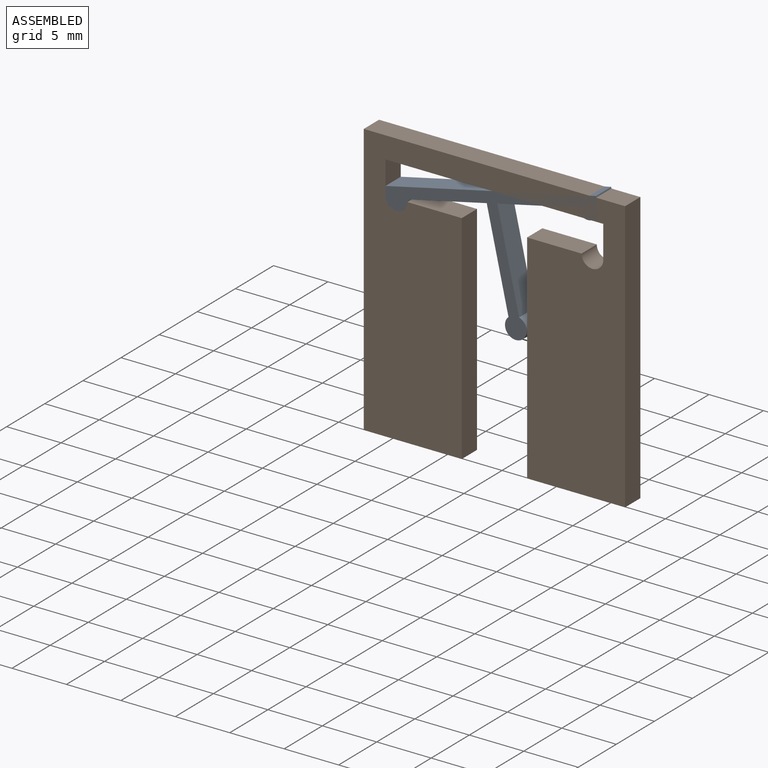
[diagram: assembled view]
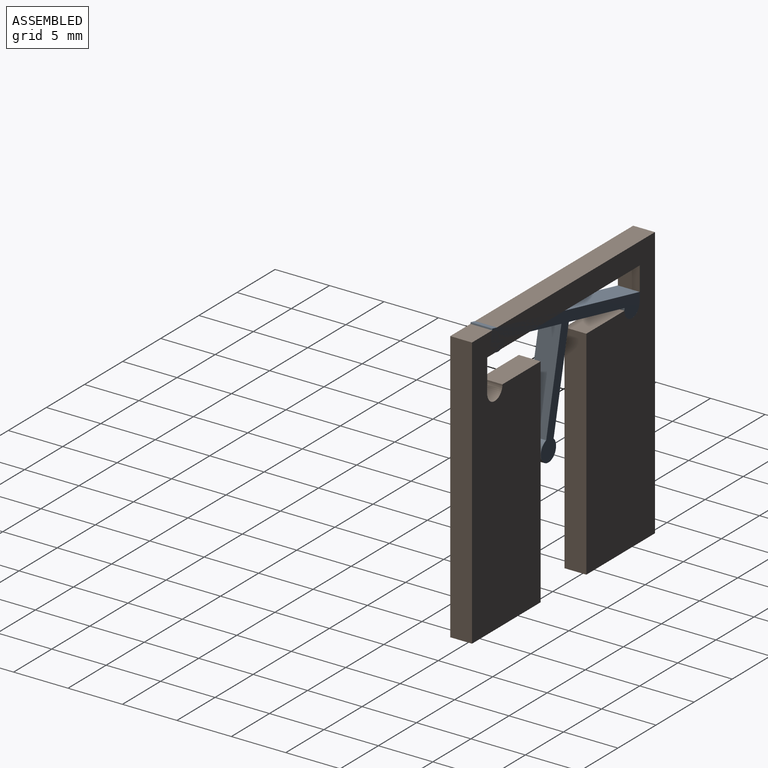
[diagram: assembled view, second angle]
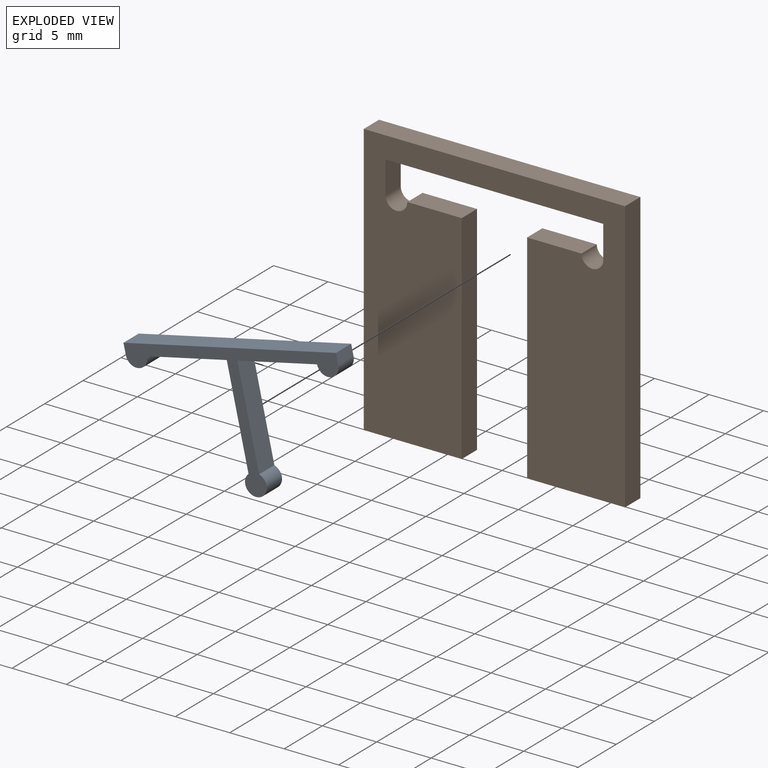
[diagram: exploded view]
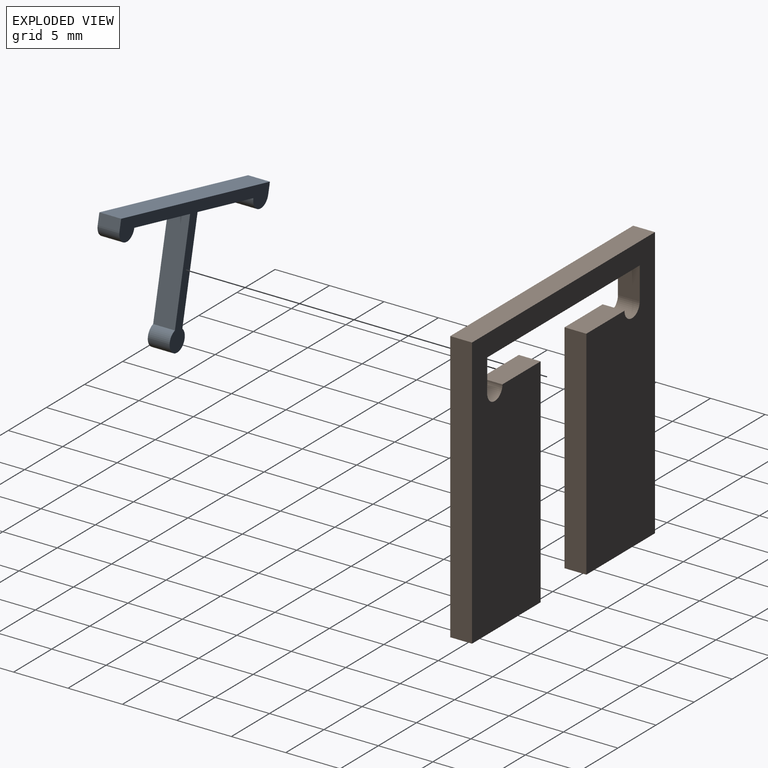
[diagram: exploded view, second angle]
ASSEMBLY  parts=2 mates=2
PART A: 12 faces, bbox 20x2x12 mm
  f0: plane 9.13x2mm, normal (-1,0,0), area 18.3mm2, adj f1,f9,f10,f11
  f1: cylinder r=1mm len=2mm, axis (0,1,0), area 10.5mm2, adj f0,f2,f10,f11
  f2: plane 9.13x2mm, normal (1,0,0), area 18.3mm2, adj f1,f3,f10,f11
  f3: plane 7.5x2mm, normal (0,0,-1), area 15mm2, adj f2,f4,f10,f11
  f4: cylinder r=1mm len=2mm, axis (0,1,0), area 6.3mm2, adj f3,f5,f10,f11
  f5: plane 2x1mm, normal (1,0,0), area 2mm2, adj f4,f6,f10,f11
  f6: plane 20x2mm, normal (0,0,1), area 40mm2, adj f5,f7,f10,f11
  f7: plane 2x1mm, normal (-1,0,0), area 2mm2, adj f6,f8,f10,f11
  f8: cylinder r=1mm len=2mm, axis (0,1,0), area 6.3mm2, adj f7,f9,f10,f11
  f9: plane 7.5x2mm, normal (0,0,-1), area 15mm2, adj f0,f8,f10,f11
  f10: plane 20x12mm, normal (0,-1,0), area 35.3mm2, adj f0,f1,f2,f3,f4,f5,f6,f7
  f11: plane 20x12mm, normal (0,1,0), area 35.3mm2, adj f0,f1,f2,f3,f4,f5,f6,f7
PART B: 16 faces, bbox 24x2x25 mm
  f0: plane 5x2mm, normal (0,0,1), area 10mm2, adj f1,f13,f14,f15
  f1: cylinder r=1mm len=2mm, axis (0,1,0), area 6.3mm2, adj f0,f2,f14,f15
  f2: plane 3x2mm, normal (1,0,0), area 6mm2, adj f1,f3,f14,f15
  f3: plane 20x2mm, normal (0,0,-1), area 40mm2, adj f2,f4,f14,f15
  f4: plane 3x2mm, normal (-1,0,0), area 6mm2, adj f3,f5,f14,f15
  f5: cylinder r=1mm len=2mm, axis (0,1,0), area 6.3mm2, adj f4,f6,f14,f15
  f6: plane 5x2mm, normal (0,0,1), area 10mm2, adj f5,f7,f14,f15
  f7: plane 20x2mm, normal (-1,0,0), area 40mm2, adj f6,f8,f14,f15
  f8: plane 9x2mm, normal (0,0,-1), area 18mm2, adj f7,f9,f14,f15
  f9: plane 25x2mm, normal (1,0,0), area 50mm2, adj f8,f10,f14,f15
  f10: plane 24x2mm, normal (0,0,1), area 48mm2, adj f9,f11,f14,f15
  f11: plane 25x2mm, normal (-1,0,0), area 50mm2, adj f10,f12,f14,f15
  f12: plane 9x2mm, normal (0,0,-1), area 18mm2, adj f11,f13,f14,f15
  f13: plane 20x2mm, normal (1,0,0), area 40mm2, adj f0,f12,f14,f15
  f14: plane 25x24mm, normal (0,-1,0), area 416.9mm2, adj f0,f1,f2,f3,f4,f5,f6,f7
  f15: plane 25x24mm, normal (0,1,0), area 416.9mm2, adj f0,f1,f2,f3,f4,f5,f6,f7
PLACE A rot(axis=(0,-1,0),12.6deg) t=(-0.22,0,1.97)mm
PLACE B at identity fixed
MATE planar A.f11 <-> B.f15  axis (0,1,0) through (-0.44,1,2.94)mm
MATE revolute A.f8 <-> B.f1  axis (0,-1,0) through (-9,-1,0)mm
